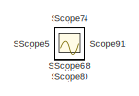
[diagram: root canvas - part 1/2, top left region]
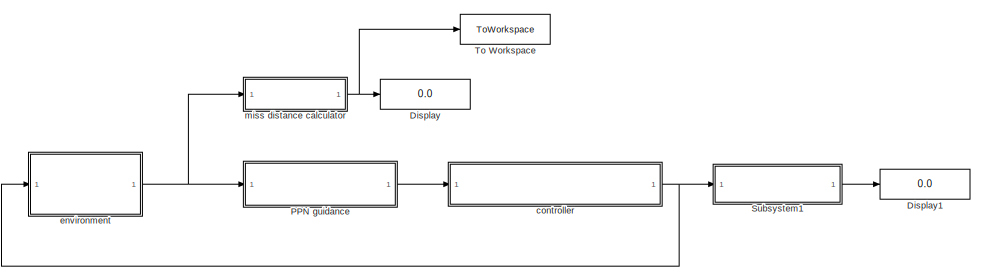
[diagram: root canvas - part 2/2, bottom right region]
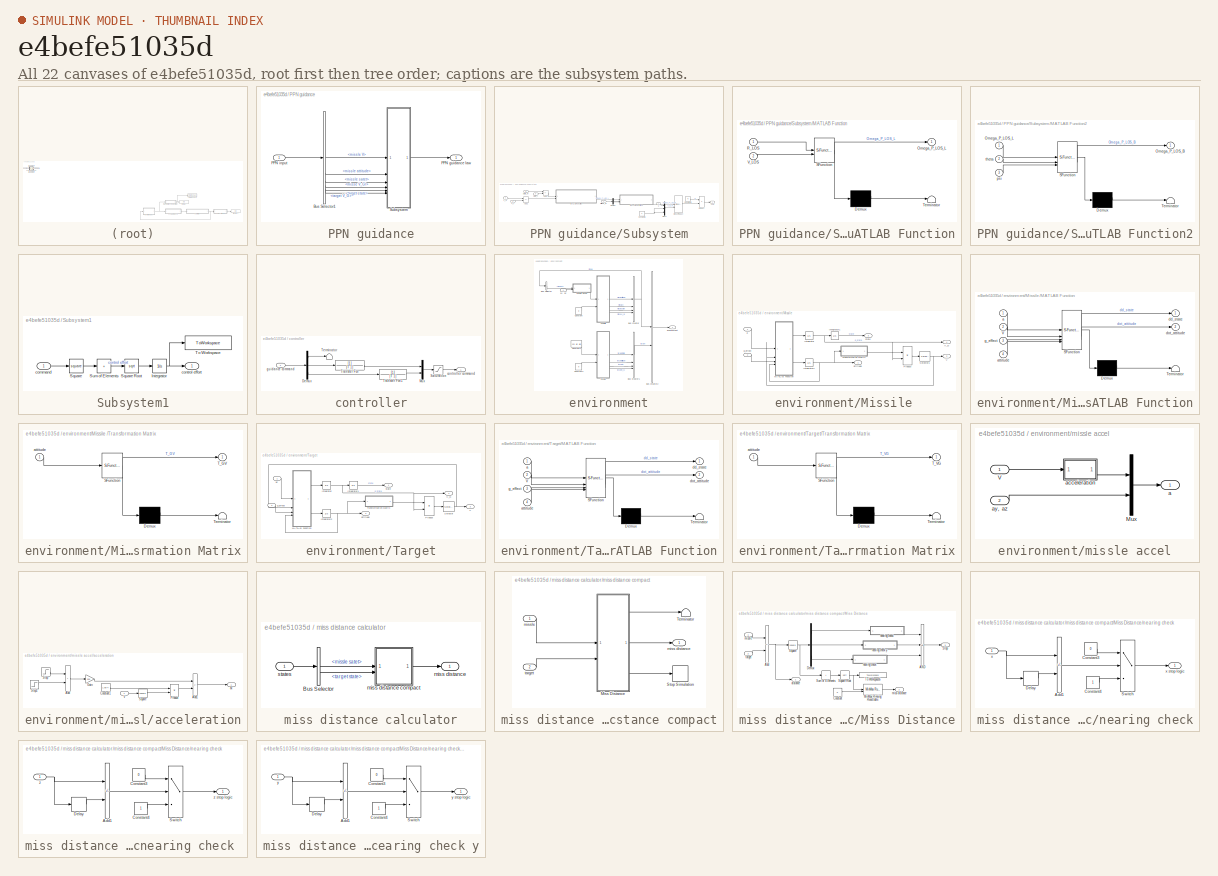
[diagram: thumbnail index - all 22 canvases of the model, root first then tree order]
MODEL slx_e4befe51035d
KIND model
CONFIG AbsTol = auto
CONFIG EnableMultiTasking = off
CONFIG FixedStep = 0.002
CONFIG InitFcn = init;
CONFIG MaxStep = auto
CONFIG MinStep = auto
CONFIG RelTol = 1e-3
CONFIG SampleTimeConstraint = Unconstrained
CONFIG SolverName = ode4
CONFIG StartTime = 0.0
CONFIG StopTime = inf
BLOCK [Display] Display
  Decimation = 1
BLOCK [Display] Display1
  Decimation = 1
BLOCK [SubSystem] PPN guidance
BLOCK [BusSelector] PPN guidance/Bus Selector1
  OutputSignals = missle.missle V,missle.missle attitude,missle.missle satet,missle.misse V_Gl,target.target state,target.target V_G
BLOCK [Outport] PPN guidance/PPN guidance law
BLOCK [Inport] PPN guidance/PPN input
BLOCK [SubSystem] PPN guidance/Subsystem
BLOCK [Sum] PPN guidance/Subsystem/Add1
  IconShape = rectangular
  Inputs = -+
BLOCK [Sum] PPN guidance/Subsystem/Add2
  IconShape = rectangular
  Inputs = -+
BLOCK [Constant] PPN guidance/Subsystem/Constant3
  Value = N
BLOCK [Constant] PPN guidance/Subsystem/Constant6
  Value = 0
BLOCK [Reference] PPN guidance/Subsystem/Cross Product  REF=matrix_library/Cross Product
  LibrarySourceBlock = simulink/Matrix\nOperations/Cross Product
  SourceBlock = matrix_library/Cross Product
  SourceType = CrossProduct
BLOCK [Demux] PPN guidance/Subsystem/Demux
  Outputs = 2
BLOCK [SubSystem] PPN guidance/Subsystem/MATLAB Function
  ErrorFcn = Stateflow.Translate.translate
  LibrarySourceBlock = simulink/User-Defined\nFunctions/MATLAB Function
  PermitHierarchicalResolution = ExplicitOnly
  SFBlockType = MATLAB Function
  TreatAsAtomicUnit = on
BLOCK [Demux] PPN guidance/Subsystem/MATLAB Function/ Demux 
  Outputs = 1
BLOCK [S-Function] PPN guidance/Subsystem/MATLAB Function/ SFunction 
  EnableBusSupport = on
  FunctionName = sf_sfun
  PortCounts = [2 2]
  SFcnIsStateOwnerBlock = off
  SFunctionDeploymentMode = off
  Tag = Stateflow S-Function 5
BLOCK [Terminator] PPN guidance/Subsystem/MATLAB Function/ Terminator 
BLOCK [Outport] PPN guidance/Subsystem/MATLAB Function/Omega_P_LOS_L
BLOCK [Inport] PPN guidance/Subsystem/MATLAB Function/R_LOS
BLOCK [Inport] PPN guidance/Subsystem/MATLAB Function/V_LOS
  Port = 2
BLOCK [SubSystem] PPN guidance/Subsystem/MATLAB Function2
  ErrorFcn = Stateflow.Translate.translate
  PermitHierarchicalResolution = ExplicitOnly
  SFBlockType = MATLAB Function
  TreatAsAtomicUnit = on
BLOCK [Demux] PPN guidance/Subsystem/MATLAB Function2/ Demux 
  Outputs = 1
BLOCK [S-Function] PPN guidance/Subsystem/MATLAB Function2/ SFunction 
  EnableBusSupport = on
  FunctionName = sf_sfun
  PortCounts = [3 2]
  SFcnIsStateOwnerBlock = off
  SFunctionDeploymentMode = off
  Tag = Stateflow S-Function 9
BLOCK [Terminator] PPN guidance/Subsystem/MATLAB Function2/ Terminator 
BLOCK [Outport] PPN guidance/Subsystem/MATLAB Function2/Omega_P_LOS_B
BLOCK [Inport] PPN guidance/Subsystem/MATLAB Function2/Omega_P_LOS_L
BLOCK [Inport] PPN guidance/Subsystem/MATLAB Function2/psi
  Port = 3
BLOCK [Inport] PPN guidance/Subsystem/MATLAB Function2/theta
  Port = 2
BLOCK [Mux] PPN guidance/Subsystem/Mux4
  DisplayOption = bar
  Inputs = 3
BLOCK [Outport] PPN guidance/Subsystem/PPN
BLOCK [Product] PPN guidance/Subsystem/Product
BLOCK [Inport] PPN guidance/Subsystem/V
BLOCK [Inport] PPN guidance/Subsystem/attitude_m
  Port = 2
BLOCK [Inport] PPN guidance/Subsystem/state_m
  Port = 3
BLOCK [Inport] PPN guidance/Subsystem/state_t
  Port = 5
BLOCK [Inport] PPN guidance/Subsystem/v_m
  Port = 4
BLOCK [Inport] PPN guidance/Subsystem/v_t
  Port = 6
BLOCK [Scope] Scope
  Floating = off
  IOType = viewer
  NumInputPorts = 1
  ScopeSpecificationString = Simulink.scopes.TimeScopeBlockCfg('CurrentConfiguration', extmgr.ConfigurationSet(extmgr.Configuration('Core','General UI',true),extmgr.Configuration('Core','Source UI',true),extmgr.Configuration('Sources','WiredSimulink',true,'DataLoggingVariableName','ScopeData1'),extmgr.Configuration('Visuals','Time Domain',true,'SerializedDisplays',{struct('MinYLimReal','-9095.33525','MaxYLimReal','1858.01721'...<+1452ch>
BLOCK [Scope] Scope1
  Floating = off
  IOType = viewer
  NumInputPorts = 1
  ScopeSpecificationString = Simulink.scopes.TimeScopeBlockCfg('CurrentConfiguration', extmgr.ConfigurationSet(extmgr.Configuration('Core','General UI',true),extmgr.Configuration('Core','Source UI',true),extmgr.Configuration('Sources','WiredSimulink',true,'DataLoggingVariableName','ScopeData1'),extmgr.Configuration('Visuals','Time Domain',true,'SerializedDisplays',{struct('MinYLimReal','-72.81517','MaxYLimReal','655.33657','Y...<+1392ch>
BLOCK [Scope] Scope10
  Floating = off
  IOType = viewer
  NumInputPorts = 1
  ScopeSpecificationString = Simulink.scopes.TimeScopeBlockCfg('CurrentConfiguration', extmgr.ConfigurationSet(extmgr.Configuration('Core','General UI',true),extmgr.Configuration('Core','Source UI',true),extmgr.Configuration('Sources','WiredSimulink',true,'DataLoggingVariableName','ScopeData10'),extmgr.Configuration('Visuals','Time Domain',true,'SerializedDisplays',{struct('MinYLimReal','-0.3927','MaxYLimReal','3.53429','YLab...<+1358ch>
BLOCK [Scope] Scope11
  Floating = off
  IOType = viewer
  NumInputPorts = 1
  ScopeSpecificationString = Simulink.scopes.TimeScopeBlockCfg('CurrentConfiguration', extmgr.ConfigurationSet(extmgr.Configuration('Core','General UI',true),extmgr.Configuration('Core','Source UI',true),extmgr.Configuration('Sources','WiredSimulink',true,'DataLoggingVariableName','ScopeData11'),extmgr.Configuration('Visuals','Time Domain',true,'SerializedDisplays',{struct('MinYLimReal','200.00000','MaxYLimReal','400.00000','...<+1374ch>
BLOCK [Scope] Scope12
  Floating = off
  IOType = viewer
  NumInputPorts = 1
  ScopeSpecificationString = Simulink.scopes.TimeScopeBlockCfg('CurrentConfiguration', extmgr.ConfigurationSet(extmgr.Configuration('Core','General UI',true),extmgr.Configuration('Core','Source UI',true),extmgr.Configuration('Sources','WiredSimulink',true,'DataLoggingVariableName','ScopeData1'),extmgr.Configuration('Visuals','Time Domain',true,'SerializedDisplays',{struct('MinYLimReal','-604.06326','MaxYLimReal','5436.56932',...<+1402ch>
BLOCK [Scope] Scope13
  Floating = off
  IOType = viewer
  NumInputPorts = 1
  ScopeSpecificationString = Simulink.scopes.TimeScopeBlockCfg('CurrentConfiguration', extmgr.ConfigurationSet(extmgr.Configuration('Core','General UI',true),extmgr.Configuration('Core','Source UI',true),extmgr.Configuration('Sources','WiredSimulink',true,'DataLoggingVariableName','ScopeData1'),extmgr.Configuration('Visuals','Time Domain',true,'SerializedDisplays',{struct('MinYLimReal','-72.57557','MaxYLimReal','653.1801','YL...<+1390ch>
BLOCK [Scope] Scope14
  Floating = off
  IOType = viewer
  NumInputPorts = 1
  ScopeSpecificationString = Simulink.scopes.TimeScopeBlockCfg('CurrentConfiguration', extmgr.ConfigurationSet(extmgr.Configuration('Core','General UI',true),extmgr.Configuration('Core','Source UI',true),extmgr.Configuration('Sources','WiredSimulink',true,'DataLoggingVariableName','ScopeData2'),extmgr.Configuration('Visuals','Time Domain',true,'SerializedDisplays',{struct('MinYLimReal','-0.0000000000000000175','MaxYLimReal','...<+1498ch>
BLOCK [Scope] Scope15
  Floating = off
  IOType = viewer
  NumInputPorts = 1
  ScopeSpecificationString = Simulink.scopes.TimeScopeBlockCfg('CurrentConfiguration', extmgr.ConfigurationSet(extmgr.Configuration('Core','General UI',true),extmgr.Configuration('Core','Source UI',true),extmgr.Configuration('Sources','WiredSimulink',true,'DataLoggingVariableName','ScopeData2'),extmgr.Configuration('Visuals','Time Domain',true,'SerializedDisplays',{struct('MinYLimReal','-0.02332','MaxYLimReal','-0.02251','YLa...<+1386ch>
BLOCK [Scope] Scope16
  Floating = off
  IOType = viewer
  NumInputPorts = 1
  ScopeSpecificationString = Simulink.scopes.TimeScopeBlockCfg('CurrentConfiguration', extmgr.ConfigurationSet(extmgr.Configuration('Core','General UI',true),extmgr.Configuration('Core','Source UI',true),extmgr.Configuration('Sources','WiredSimulink',true,'DataLoggingVariableName','ScopeData4'),extmgr.Configuration('Visuals','Time Domain',true,'SerializedDisplays',{struct('MinYLimReal','-6.13125','MaxYLimReal','55.18125','YLa...<+1388ch>
BLOCK [Scope] Scope17
  Floating = off
  IOType = viewer
  NumInputPorts = 1
  ScopeSpecificationString = Simulink.scopes.TimeScopeBlockCfg('CurrentConfiguration', extmgr.ConfigurationSet(extmgr.Configuration('Core','General UI',true),extmgr.Configuration('Core','Source UI',true),extmgr.Configuration('Sources','WiredSimulink',true,'DataLoggingVariableName','ScopeData5'),extmgr.Configuration('Visuals','Time Domain',true,'SerializedDisplays',{struct('MinYLimReal','5491.82041','MaxYLimReal','8883.13523',...<+1406ch>
BLOCK [Scope] Scope18
  Floating = off
  IOType = viewer
  NumInputPorts = 1
  ScopeSpecificationString = Simulink.scopes.TimeScopeBlockCfg('CurrentConfiguration', extmgr.ConfigurationSet(extmgr.Configuration('Core','General UI',true),extmgr.Configuration('Core','Source UI',true),extmgr.Configuration('Sources','WiredSimulink',true,'DataLoggingVariableName','ScopeData6'),extmgr.Configuration('Visuals','Time Domain',true,'SerializedDisplays',{struct('MinYLimReal','-0.000000000000000009','MaxYLimReal','0...<+1488ch>
BLOCK [Scope] Scope2
  Floating = off
  IOType = viewer
  NumInputPorts = 1
  ScopeSpecificationString = Simulink.scopes.TimeScopeBlockCfg('CurrentConfiguration', extmgr.ConfigurationSet(extmgr.Configuration('Core','General UI',true),extmgr.Configuration('Core','Source UI',true),extmgr.Configuration('Sources','WiredSimulink',true,'DataLoggingVariableName','ScopeData1'),extmgr.Configuration('Visuals','Time Domain',true,'SerializedDisplays',{struct('MinYLimReal','-6.13125','MaxYLimReal','55.18125','YLa...<+1388ch>
BLOCK [Scope] Scope20
  Floating = off
  IOType = viewer
  NumInputPorts = 1
  ScopeSpecificationString = Simulink.scopes.TimeScopeBlockCfg('CurrentConfiguration', extmgr.ConfigurationSet(extmgr.Configuration('Core','General UI',true),extmgr.Configuration('Core','Source UI',true),extmgr.Configuration('Sources','WiredSimulink',true,'DataLoggingVariableName','ScopeData8'),extmgr.Configuration('Visuals','Time Domain',true,'SerializedDisplays',{struct('MinYLimReal','-4.47062','MaxYLimReal','40.36014','YLa...<+1388ch>
BLOCK [Scope] Scope21
  Floating = off
  IOType = viewer
  NumInputPorts = 1
  ScopeSpecificationString = Simulink.scopes.TimeScopeBlockCfg('CurrentConfiguration', extmgr.ConfigurationSet(extmgr.Configuration('Core','General UI',true),extmgr.Configuration('Core','Source UI',true),extmgr.Configuration('Sources','WiredSimulink',true,'DataLoggingVariableName','ScopeData9'),extmgr.Configuration('Visuals','Time Domain',true,'SerializedDisplays',{struct('MinYLimReal','-994.25187','MaxYLimReal','4096.81321',...<+1402ch>
BLOCK [Scope] Scope22
  Floating = off
  IOType = viewer
  NumInputPorts = 1
  ScopeSpecificationString = Simulink.scopes.TimeScopeBlockCfg('CurrentConfiguration', extmgr.ConfigurationSet(extmgr.Configuration('Core','General UI',true),extmgr.Configuration('Core','Source UI',true),extmgr.Configuration('Sources','WiredSimulink',true,'DataLoggingVariableName','ScopeData10'),extmgr.Configuration('Visuals','Time Domain',true,'SerializedDisplays',{struct('MinYLimReal','-0.00000000000000001','MaxYLimReal','0...<+1500ch>
BLOCK [Scope] Scope23
  Floating = off
  IOType = viewer
  NumInputPorts = 1
  ScopeSpecificationString = Simulink.scopes.TimeScopeBlockCfg('CurrentConfiguration', extmgr.ConfigurationSet(extmgr.Configuration('Core','General UI',true),extmgr.Configuration('Core','Source UI',true),extmgr.Configuration('Sources','WiredSimulink',true,'DataLoggingVariableName','ScopeData11'),extmgr.Configuration('Visuals','Time Domain',true,'SerializedDisplays',{struct('MinYLimReal','-0.000000000000000001','MaxYLimReal','...<+1489ch>
BLOCK [Scope] Scope24
  Floating = off
  IOType = viewer
  NumInputPorts = 1
  ScopeSpecificationString = Simulink.scopes.TimeScopeBlockCfg('CurrentConfiguration', extmgr.ConfigurationSet(extmgr.Configuration('Core','General UI',true),extmgr.Configuration('Core','Source UI',true),extmgr.Configuration('Sources','WiredSimulink',true,'DataLoggingVariableName','ScopeData1'),extmgr.Configuration('Visuals','Time Domain',true,'SerializedDisplays',{struct('MinYLimReal','-107115.79279','MaxYLimReal','961235.50...<+1422ch>
BLOCK [Scope] Scope3
  Floating = off
  IOType = viewer
  NumInputPorts = 1
  ScopeSpecificationString = Simulink.scopes.TimeScopeBlockCfg('CurrentConfiguration', extmgr.ConfigurationSet(extmgr.Configuration('Core','General UI',true),extmgr.Configuration('Core','Source UI',true),extmgr.Configuration('Sources','WiredSimulink',true,'DataLoggingVariableName','ScopeData1'),extmgr.Configuration('Visuals','Time Domain',true,'SerializedDisplays',{struct('MinYLimReal','-337.5','MaxYLimReal','37.5','YLabelRea...<+1347ch>
BLOCK [Scope] Scope4
  Floating = off
  IOType = viewer
  NumInputPorts = 1
  ScopeSpecificationString = Simulink.scopes.TimeScopeBlockCfg('CurrentConfiguration', extmgr.ConfigurationSet(extmgr.Configuration('Core','General UI',true),extmgr.Configuration('Core','Source UI',true),extmgr.Configuration('Sources','WiredSimulink',true,'DataLoggingVariableName','ScopeData2'),extmgr.Configuration('Visuals','Time Domain',true,'SerializedDisplays',{struct('MinYLimReal','-337.5','MaxYLimReal','37.5','YLabelRea...<+1347ch>
BLOCK [Scope] Scope5
  Floating = off
  IOType = viewer
  NumInputPorts = 1
  ScopeSpecificationString = Simulink.scopes.TimeScopeBlockCfg('CurrentConfiguration', extmgr.ConfigurationSet(extmgr.Configuration('Core','General UI',true),extmgr.Configuration('Core','Source UI',true),extmgr.Configuration('Sources','WiredSimulink',true,'DataLoggingVariableName','ScopeData3'),extmgr.Configuration('Visuals','Time Domain',true,'SerializedDisplays',{struct('MinYLimReal','-1.00000','MaxYLimReal','1.00000','YLab...<+1359ch>
BLOCK [Scope] Scope6
  Floating = off
  IOType = viewer
  NumInputPorts = 1
  ScopeSpecificationString = Simulink.scopes.TimeScopeBlockCfg('CurrentConfiguration', extmgr.ConfigurationSet(extmgr.Configuration('Core','General UI',true),extmgr.Configuration('Core','Source UI',true),extmgr.Configuration('Sources','WiredSimulink',true,'DataLoggingVariableName','ScopeData6'),extmgr.Configuration('Visuals','Time Domain',true,'SerializedDisplays',{struct('MinYLimReal','-614.44146','MaxYLimReal','5529.9731','...<+1399ch>
BLOCK [Scope] Scope7
  Floating = off
  IOType = viewer
  NumInputPorts = 1
  ScopeSpecificationString = Simulink.scopes.TimeScopeBlockCfg('CurrentConfiguration', extmgr.ConfigurationSet(extmgr.Configuration('Core','General UI',true),extmgr.Configuration('Core','Source UI',true),extmgr.Configuration('Sources','WiredSimulink',true,'DataLoggingVariableName','ScopeData7'),extmgr.Configuration('Visuals','Time Domain',true,'SerializedDisplays',{struct('MinYLimReal','-0.11496','MaxYLimReal','1.03464','YLab...<+1359ch>
BLOCK [Scope] Scope8
  Floating = off
  IOType = viewer
  NumInputPorts = 1
  ScopeSpecificationString = Simulink.scopes.TimeScopeBlockCfg('CurrentConfiguration', extmgr.ConfigurationSet(extmgr.Configuration('Core','General UI',true),extmgr.Configuration('Core','Source UI',true),extmgr.Configuration('Sources','WiredSimulink',true,'DataLoggingVariableName','ScopeData8'),extmgr.Configuration('Visuals','Time Domain',true,'SerializedDisplays',{struct('MinYLimReal','412.19771','MaxYLimReal','425.81202','Y...<+1373ch>
BLOCK [Scope] Scope9
  Floating = off
  IOType = viewer
  NumInputPorts = 1
  ScopeSpecificationString = Simulink.scopes.TimeScopeBlockCfg('CurrentConfiguration', extmgr.ConfigurationSet(extmgr.Configuration('Core','General UI',true),extmgr.Configuration('Core','Source UI',true),extmgr.Configuration('Sources','WiredSimulink',true,'DataLoggingVariableName','ScopeData9'),extmgr.Configuration('Visuals','Time Domain',true,'SerializedDisplays',{struct('MinYLimReal','-625.00000','MaxYLimReal','5625.00000',...<+1406ch>
BLOCK [SubSystem] Subsystem1
BLOCK [Integrator] Subsystem1/Integrator
BLOCK [Math] Subsystem1/Square
  Operator = square
BLOCK [Sqrt] Subsystem1/Square Root
BLOCK [Sum] Subsystem1/Sum of Elements
  IconShape = rectangular
  Inputs = +
BLOCK [ToWorkspace] Subsystem1/To Workspace
  FixptAsFi = on
  MaxDataPoints = inf
  SampleTime = -1
  SaveFormat = Timeseries
  VariableName = control_effort
BLOCK [Inport] Subsystem1/command
BLOCK [Outport] Subsystem1/control effort
BLOCK [ToWorkspace] To Workspace
  FixptAsFi = on
  MaxDataPoints = inf
  SampleTime = -1
  SaveFormat = Timeseries
  VariableName = miss_distance
BLOCK [SubSystem] controller
BLOCK [Demux] controller/Demux
  Outputs = 3
BLOCK [Mux] controller/Mux
  DisplayOption = bar
  Inputs = 2
BLOCK [Saturate] controller/Saturation
  LowerLimit = -saturation_lim*g
  UpperLimit = saturation_lim*g
BLOCK [Terminator] controller/Terminator
BLOCK [TransferFcn] controller/Transfer Fcn
  Denominator = [T 1]
BLOCK [TransferFcn] controller/Transfer Fcn1
  Denominator = [T 1]
BLOCK [Outport] controller/controller command
BLOCK [Inport] controller/guidance command
BLOCK [SubSystem] environment
BLOCK [BusCreator] environment/Bus Creator
  DisplayOption = bar
  InheritFromInputs = on
  Inputs = 4
BLOCK [BusCreator] environment/Bus Creator1
  DisplayOption = bar
  InheritFromInputs = on
  Inputs = 4
BLOCK [BusCreator] environment/Bus Creator2
  DisplayOption = bar
  InheritFromInputs = on
  Inputs = 2
BLOCK [BusSelector] environment/Bus Selector
  OutputSignals = missle V
BLOCK [Constant] environment/Constant
  Value = 0
BLOCK [Constant] environment/Constant1
  Value = [0; g; g]
BLOCK [Constant] environment/Constant2
  Value = 0
BLOCK [SubSystem] environment/Missile 
BLOCK [Integrator] environment/Missile /Integrator
  InitialCondition = d_state_m
BLOCK [Integrator] environment/Missile /Integrator1
  InitialCondition = state_m0
BLOCK [Integrator] environment/Missile /Integrator2
  InitialCondition = attitude_m0
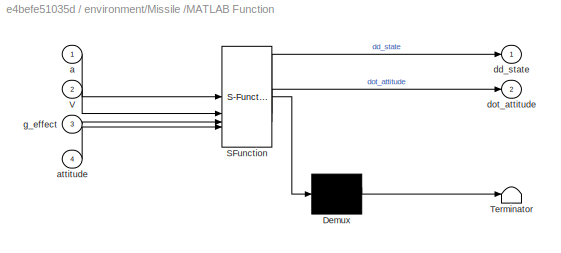
BLOCK [SubSystem] environment/Missile /MATLAB Function
  ErrorFcn = Stateflow.Translate.translate
  LibrarySourceBlock = simulink/User-Defined\nFunctions/MATLAB Function
  PermitHierarchicalResolution = ExplicitOnly
  SFBlockType = MATLAB Function
  TreatAsAtomicUnit = on
BLOCK [Demux] environment/Missile /MATLAB Function/ Demux 
  Outputs = 1
BLOCK [S-Function] environment/Missile /MATLAB Function/ SFunction 
  EnableBusSupport = on
  FunctionName = sf_sfun
  PortCounts = [4 3]
  SFcnIsStateOwnerBlock = off
  SFunctionDeploymentMode = off
  Tag = Stateflow S-Function 2
BLOCK [Terminator] environment/Missile /MATLAB Function/ Terminator 
BLOCK [Inport] environment/Missile /MATLAB Function/V
  Port = 2
BLOCK [Inport] environment/Missile /MATLAB Function/a
BLOCK [Inport] environment/Missile /MATLAB Function/attitude
  Port = 4
BLOCK [Outport] environment/Missile /MATLAB Function/dd_state
BLOCK [Outport] environment/Missile /MATLAB Function/dot_attitude
  Port = 2
BLOCK [Inport] environment/Missile /MATLAB Function/g_effect
  Port = 3
BLOCK [Product] environment/Missile /Product
  Multiplication = Matrix(*)
BLOCK [Selector] environment/Missile /Selector1
  IndexOptions = Index vector (dialog)
  Indices = [1]
  InputPortWidth = 3
  OutputSizes = 1
BLOCK [SubSystem] environment/Missile /Transformation Matrix
  ErrorFcn = Stateflow.Translate.translate
  LibrarySourceBlock = simulink/User-Defined\nFunctions/MATLAB Function
  PermitHierarchicalResolution = ExplicitOnly
  SFBlockType = MATLAB Function
  TreatAsAtomicUnit = on
BLOCK [Demux] environment/Missile /Transformation Matrix/ Demux 
  Outputs = 1
BLOCK [S-Function] environment/Missile /Transformation Matrix/ SFunction 
  EnableBusSupport = on
  FunctionName = sf_sfun
  PortCounts = [1 2]
  SFcnIsStateOwnerBlock = off
  SFunctionDeploymentMode = off
  Tag = Stateflow S-Function 1
BLOCK [Terminator] environment/Missile /Transformation Matrix/ Terminator 
BLOCK [Outport] environment/Missile /Transformation Matrix/T_GV
BLOCK [Inport] environment/Missile /Transformation Matrix/attitude
BLOCK [Outport] environment/Missile /V
  Port = 2
BLOCK [Outport] environment/Missile /V_G
  Port = 4
BLOCK [Inport] environment/Missile /a
BLOCK [Outport] environment/Missile /attitude
BLOCK [Inport] environment/Missile /g_effect
  Port = 2
BLOCK [Outport] environment/Missile /state
  Port = 3
BLOCK [SubSystem] environment/Target
BLOCK [Integrator] environment/Target/Integrator
  InitialCondition = d_state_t
BLOCK [Integrator] environment/Target/Integrator1
  InitialCondition = state_t0
BLOCK [Integrator] environment/Target/Integrator2
  InitialCondition = attitude_t0
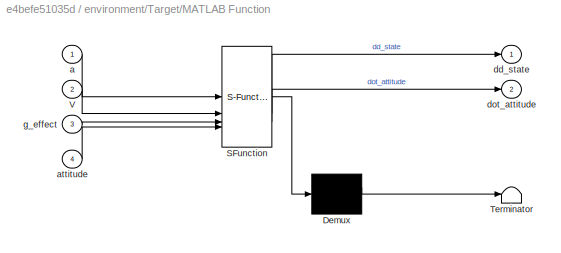
BLOCK [SubSystem] environment/Target/MATLAB Function
  ErrorFcn = Stateflow.Translate.translate
  LibrarySourceBlock = simulink/User-Defined\nFunctions/MATLAB Function
  PermitHierarchicalResolution = ExplicitOnly
  SFBlockType = MATLAB Function
  TreatAsAtomicUnit = on
BLOCK [Demux] environment/Target/MATLAB Function/ Demux 
  Outputs = 1
BLOCK [S-Function] environment/Target/MATLAB Function/ SFunction 
  EnableBusSupport = on
  FunctionName = sf_sfun
  PortCounts = [4 3]
  SFcnIsStateOwnerBlock = off
  SFunctionDeploymentMode = off
  Tag = Stateflow S-Function 3
BLOCK [Terminator] environment/Target/MATLAB Function/ Terminator 
BLOCK [Inport] environment/Target/MATLAB Function/V
  Port = 2
BLOCK [Inport] environment/Target/MATLAB Function/a
BLOCK [Inport] environment/Target/MATLAB Function/attitude
  Port = 4
BLOCK [Outport] environment/Target/MATLAB Function/dd_state
BLOCK [Outport] environment/Target/MATLAB Function/dot_attitude
  Port = 2
BLOCK [Inport] environment/Target/MATLAB Function/g_effect
  Port = 3
BLOCK [Product] environment/Target/Product
  Multiplication = Matrix(*)
BLOCK [Selector] environment/Target/Selector
  IndexOptions = Index vector (dialog)
  Indices = [1]
  InputPortWidth = 3
  NameLocation = left
  OutputSizes = 1
BLOCK [SubSystem] environment/Target/Transformation Matrix
  ErrorFcn = Stateflow.Translate.translate
  LibrarySourceBlock = simulink/User-Defined\nFunctions/MATLAB Function
  PermitHierarchicalResolution = ExplicitOnly
  SFBlockType = MATLAB Function
  TreatAsAtomicUnit = on
BLOCK [Demux] environment/Target/Transformation Matrix/ Demux 
  Outputs = 1
BLOCK [S-Function] environment/Target/Transformation Matrix/ SFunction 
  EnableBusSupport = on
  FunctionName = sf_sfun
  PortCounts = [1 2]
  SFcnIsStateOwnerBlock = off
  SFunctionDeploymentMode = off
  Tag = Stateflow S-Function 4
BLOCK [Terminator] environment/Target/Transformation Matrix/ Terminator 
BLOCK [Outport] environment/Target/Transformation Matrix/T_VG
BLOCK [Inport] environment/Target/Transformation Matrix/attitude
BLOCK [Outport] environment/Target/V
  Port = 3
BLOCK [Outport] environment/Target/V_G
  Port = 4
BLOCK [Inport] environment/Target/ac
BLOCK [Outport] environment/Target/attitude
  Port = 2
BLOCK [Inport] environment/Target/g_effect
  Port = 2
BLOCK [Outport] environment/Target/state
BLOCK [Inport] environment/ay, az
BLOCK [Outport] environment/environment
BLOCK [SubSystem] environment/missle accel
BLOCK [Mux] environment/missle accel/Mux
  DisplayOption = bar
  Inputs = 2
BLOCK [Inport] environment/missle accel/V
BLOCK [Outport] environment/missle accel/a
BLOCK [SubSystem] environment/missle accel/acceleration
BLOCK [Sum] environment/missle accel/acceleration/Add
  IconShape = rectangular
BLOCK [Sum] environment/missle accel/acceleration/Add1
  IconShape = rectangular
  Inputs = +-
BLOCK [Constant] environment/missle accel/acceleration/Constant1
  Value = 1.5e-4
BLOCK [Gain] environment/missle accel/acceleration/Gain
  Gain = 300
BLOCK [Product] environment/missle accel/acceleration/Product
BLOCK [Math] environment/missle accel/acceleration/Square
  Operator = square
BLOCK [Step] environment/missle accel/acceleration/Step
  After = -1
  SampleTime = 0
  Time = 3
BLOCK [Step] environment/missle accel/acceleration/Step1
  SampleTime = 0
  Time = 0
BLOCK [Inport] environment/missle accel/acceleration/V
BLOCK [Outport] environment/missle accel/acceleration/ax
BLOCK [Inport] environment/missle accel/ay, az
  Port = 2
BLOCK [SubSystem] miss distance calculator
BLOCK [BusSelector] miss distance calculator/Bus Selector
  OutputSignals = missle.missle satet,target.target state
BLOCK [Outport] miss distance calculator/miss distance
BLOCK [SubSystem] miss distance calculator/miss distance compact
BLOCK [SubSystem] miss distance calculator/miss distance compact/Miss Distance
BLOCK [Logic] miss distance calculator/miss distance compact/Miss Distance/AND
  AllPortsSameDT = off
  IconShape = distinctive
  Inputs = 3
  OutDataTypeStr = boolean
BLOCK [Sum] miss distance calculator/miss distance compact/Miss Distance/Add
  IconShape = rectangular
  Inputs = +-
BLOCK [Constant] miss distance calculator/miss distance compact/Miss Distance/Constant
  Value = 0
BLOCK [Demux] miss distance calculator/miss distance compact/Miss Distance/Demux
  Outputs = 3
BLOCK [Reference] miss distance calculator/miss distance compact/Miss Distance/MinMax Running Resettable  REF=simulink/Math
Operations/MinMax
Running
Resettable
  SourceBlock = simulink/Math\nOperations/MinMax\nRunning\nResettable
  SourceType = MinMax Running Resettable
BLOCK [Math] miss distance calculator/miss distance compact/Miss Distance/Square
  Operator = square
BLOCK [Sqrt] miss distance calculator/miss distance compact/Miss Distance/Square Root
BLOCK [Outport] miss distance calculator/miss distance compact/Miss Distance/Stop
  Port = 3
BLOCK [Sum] miss distance calculator/miss distance compact/Miss Distance/Sum of Elements
  IconShape = rectangular
  Inputs = +
BLOCK [ToWorkspace] miss distance calculator/miss distance compact/Miss Distance/To Workspace6
  FixptAsFi = on
  MaxDataPoints = inf
  SampleTime = -1
  Save2DSignal = 2-D array (concatenate along first dimension)
  SaveFormat = Timeseries
  VariableName = distance
BLOCK [Outport] miss distance calculator/miss distance compact/Miss Distance/distance
BLOCK [Outport] miss distance calculator/miss distance compact/Miss Distance/miss distance
  Port = 2
BLOCK [Inport] miss distance calculator/miss distance compact/Miss Distance/missle
BLOCK [SubSystem] miss distance calculator/miss distance compact/Miss Distance/nearing check
BLOCK [SubSystem] miss distance calculator/miss distance compact/Miss Distance/nearing check 
BLOCK [Sum] miss distance calculator/miss distance compact/Miss Distance/nearing check /Add1
  IconShape = rectangular
  Inputs = -+
BLOCK [Constant] miss distance calculator/miss distance compact/Miss Distance/nearing check /Constant3
  Value = 0
BLOCK [Constant] miss distance calculator/miss distance compact/Miss Distance/nearing check /Constant4
BLOCK [Delay] miss distance calculator/miss distance compact/Miss Distance/nearing check /Delay
  DelayLength = 1
  InitialCondition = inf
  InputPortMap = u0
BLOCK [Switch] miss distance calculator/miss distance compact/Miss Distance/nearing check /Switch
  Criteria = u2 > Threshold
  InputSameDT = off
  SaturateOnIntegerOverflow = off
BLOCK [Inport] miss distance calculator/miss distance compact/Miss Distance/nearing check /z
BLOCK [Outport] miss distance calculator/miss distance compact/Miss Distance/nearing check /z stop logic
BLOCK [SubSystem] miss distance calculator/miss distance compact/Miss Distance/nearing check y
BLOCK [Sum] miss distance calculator/miss distance compact/Miss Distance/nearing check y/Add1
  IconShape = rectangular
  Inputs = -+
BLOCK [Constant] miss distance calculator/miss distance compact/Miss Distance/nearing check y/Constant3
  Value = 0
BLOCK [Constant] miss distance calculator/miss distance compact/Miss Distance/nearing check y/Constant4
BLOCK [Delay] miss distance calculator/miss distance compact/Miss Distance/nearing check y/Delay
  DelayLength = 1
  InitialCondition = inf
  InputPortMap = u0
BLOCK [Switch] miss distance calculator/miss distance compact/Miss Distance/nearing check y/Switch
  Criteria = u2 > Threshold
  InputSameDT = off
  SaturateOnIntegerOverflow = off
BLOCK [Inport] miss distance calculator/miss distance compact/Miss Distance/nearing check y/y
BLOCK [Outport] miss distance calculator/miss distance compact/Miss Distance/nearing check y/y stop logic
BLOCK [Sum] miss distance calculator/miss distance compact/Miss Distance/nearing check/Add1
  IconShape = rectangular
  Inputs = -+
BLOCK [Constant] miss distance calculator/miss distance compact/Miss Distance/nearing check/Constant3
  Value = 0
BLOCK [Constant] miss distance calculator/miss distance compact/Miss Distance/nearing check/Constant4
BLOCK [Delay] miss distance calculator/miss distance compact/Miss Distance/nearing check/Delay
  DelayLength = 1
  InitialCondition = inf
  InputPortMap = u0
BLOCK [Switch] miss distance calculator/miss distance compact/Miss Distance/nearing check/Switch
  Criteria = u2 > Threshold
  InputSameDT = off
  SaturateOnIntegerOverflow = off
BLOCK [Inport] miss distance calculator/miss distance compact/Miss Distance/nearing check/x
BLOCK [Outport] miss distance calculator/miss distance compact/Miss Distance/nearing check/x stop logic
BLOCK [Inport] miss distance calculator/miss distance compact/Miss Distance/target
  Port = 2
BLOCK [Stop] miss distance calculator/miss distance compact/Stop Simulation
BLOCK [Terminator] miss distance calculator/miss distance compact/Terminator
BLOCK [Outport] miss distance calculator/miss distance compact/miss distance
BLOCK [Inport] miss distance calculator/miss distance compact/missle
BLOCK [Inport] miss distance calculator/miss distance compact/target
  Port = 2
BLOCK [Inport] miss distance calculator/states
LINE PPN guidance/Bus Selector1:1 -> PPN guidance/Subsystem:1
LINE PPN guidance/Bus Selector1:2 -> PPN guidance/Subsystem:2
LINE PPN guidance/Bus Selector1:3 -> PPN guidance/Subsystem:3
LINE PPN guidance/Bus Selector1:4 -> PPN guidance/Subsystem:4
LINE PPN guidance/Bus Selector1:5 -> PPN guidance/Subsystem:5
LINE PPN guidance/Bus Selector1:6 -> PPN guidance/Subsystem:6
LINE PPN guidance/PPN input:1 -> PPN guidance/Bus Selector1:1
LINE PPN guidance/Subsystem/Add1:1 -> PPN guidance/Subsystem/MATLAB Function:1
LINE PPN guidance/Subsystem/Add2:1 -> PPN guidance/Subsystem/MATLAB Function:2
LINE PPN guidance/Subsystem/Constant3:1 -> PPN guidance/Subsystem/Product:1
NET PPN guidance/Subsystem/Constant6:1 -> PPN guidance/Subsystem/Mux4:2, PPN guidance/Subsystem/Mux4:3
LINE PPN guidance/Subsystem/Cross Product:1 -> PPN guidance/Subsystem/Product:2
LINE PPN guidance/Subsystem/Demux:1 -> PPN guidance/Subsystem/MATLAB Function2:2
LINE PPN guidance/Subsystem/Demux:2 -> PPN guidance/Subsystem/MATLAB Function2:3
LINE PPN guidance/Subsystem/MATLAB Function2:1 -> PPN guidance/Subsystem/Cross Product:1
LINE PPN guidance/Subsystem/MATLAB Function:1 -> PPN guidance/Subsystem/MATLAB Function2:1
LINE PPN guidance/Subsystem/Mux4:1 -> PPN guidance/Subsystem/Cross Product:2
LINE PPN guidance/Subsystem/Product:1 -> PPN guidance/Subsystem/PPN:1
LINE PPN guidance/Subsystem/V:1 -> PPN guidance/Subsystem/Mux4:1
LINE PPN guidance/Subsystem/attitude_m:1 -> PPN guidance/Subsystem/Demux:1
LINE PPN guidance/Subsystem/state_m:1 -> PPN guidance/Subsystem/Add1:1
LINE PPN guidance/Subsystem/state_t:1 -> PPN guidance/Subsystem/Add1:2
LINE PPN guidance/Subsystem/v_m:1 -> PPN guidance/Subsystem/Add2:1
LINE PPN guidance/Subsystem/v_t:1 -> PPN guidance/Subsystem/Add2:2
LINE PPN guidance/Subsystem:1 -> PPN guidance/PPN guidance law:1
LINE PPN guidance:1 -> controller:1
NET Subsystem1/Integrator:1 -> Subsystem1/To Workspace:1, Subsystem1/control effort:1
LINE Subsystem1/Square Root:1 -> Subsystem1/Integrator:1
LINE Subsystem1/Square:1 -> Subsystem1/Sum of Elements:1
LINE Subsystem1/Sum of Elements:1 -> Subsystem1/Square Root:1
LINE Subsystem1/command:1 -> Subsystem1/Square:1
LINE Subsystem1:1 -> Display1:1
LINE controller/Demux:1 -> controller/Terminator:1
LINE controller/Demux:2 -> controller/Transfer Fcn:1
LINE controller/Demux:3 -> controller/Transfer Fcn1:1
LINE controller/Mux:1 -> controller/Saturation:1
LINE controller/Saturation:1 -> controller/controller command:1
LINE controller/Transfer Fcn1:1 -> controller/Mux:2
LINE controller/Transfer Fcn:1 -> controller/Mux:1
LINE controller/guidance command:1 -> controller/Demux:1
NET controller:1 -> Subsystem1:1, environment:1
LINE environment/Bus Creator1:1 -> environment/Bus Creator2:2
LINE environment/Bus Creator2:1 -> environment/environment:1
NET environment/Bus Creator:1 -> environment/Bus Creator2:1, environment/Bus Selector:1
LINE environment/Bus Selector:1 -> environment/missle accel:1
LINE environment/Constant1:1 -> environment/Target:1
LINE environment/Constant2:1 -> environment/Target:2
LINE environment/Constant:1 -> environment/Missile :2
LINE environment/Missile /Integrator1:1 -> environment/Missile /state:1
NET environment/Missile /Integrator2:1 -> environment/Missile /MATLAB Function:4, environment/Missile /Transformation Matrix:1, environment/Missile /attitude:1
NET environment/Missile /Integrator:1 -> environment/Missile /Integrator1:1, environment/Missile /Product:2, environment/Missile /V_G:1
LINE environment/Missile /MATLAB Function:1 -> environment/Missile /Integrator:1
LINE environment/Missile /MATLAB Function:2 -> environment/Missile /Integrator2:1
LINE environment/Missile /Product:1 -> environment/Missile /Selector1:1
NET environment/Missile /Selector1:1 -> environment/Missile /MATLAB Function:2, environment/Missile /V:1
LINE environment/Missile /Transformation Matrix:1 -> environment/Missile /Product:1
LINE environment/Missile /a:1 -> environment/Missile /MATLAB Function:1
LINE environment/Missile /g_effect:1 -> environment/Missile /MATLAB Function:3
LINE environment/Missile :1 -> environment/Bus Creator:1
LINE environment/Missile :2 -> environment/Bus Creator:2
LINE environment/Missile :3 -> environment/Bus Creator:3
LINE environment/Missile :4 -> environment/Bus Creator:4
LINE environment/Target/Integrator1:1 -> environment/Target/state:1
NET environment/Target/Integrator2:1 -> environment/Target/MATLAB Function:4, environment/Target/Transformation Matrix:1, environment/Target/attitude:1
NET environment/Target/Integrator:1 -> environment/Target/Integrator1:1, environment/Target/Product:2, environment/Target/V_G:1
LINE environment/Target/MATLAB Function:1 -> environment/Target/Integrator:1
LINE environment/Target/MATLAB Function:2 -> environment/Target/Integrator2:1
LINE environment/Target/Product:1 -> environment/Target/Selector:1
NET environment/Target/Selector:1 -> environment/Target/MATLAB Function:2, environment/Target/V:1
LINE environment/Target/Transformation Matrix:1 -> environment/Target/Product:1
LINE environment/Target/ac:1 -> environment/Target/MATLAB Function:1
LINE environment/Target/g_effect:1 -> environment/Target/MATLAB Function:3
LINE environment/Target:1 -> environment/Bus Creator1:1
LINE environment/Target:2 -> environment/Bus Creator1:2
LINE environment/Target:3 -> environment/Bus Creator1:3
LINE environment/Target:4 -> environment/Bus Creator1:4
LINE environment/ay, az:1 -> environment/missle accel:2
LINE environment/missle accel/Mux:1 -> environment/missle accel/a:1
LINE environment/missle accel/V:1 -> environment/missle accel/acceleration:1
LINE environment/missle accel/acceleration/Add1:1 -> environment/missle accel/acceleration/ax:1
LINE environment/missle accel/acceleration/Add:1 -> environment/missle accel/acceleration/Gain:1
LINE environment/missle accel/acceleration/Constant1:1 -> environment/missle accel/acceleration/Product:1
LINE environment/missle accel/acceleration/Gain:1 -> environment/missle accel/acceleration/Add1:1
LINE environment/missle accel/acceleration/Product:1 -> environment/missle accel/acceleration/Add1:2
LINE environment/missle accel/acceleration/Square:1 -> environment/missle accel/acceleration/Product:2
LINE environment/missle accel/acceleration/Step1:1 -> environment/missle accel/acceleration/Add:2
LINE environment/missle accel/acceleration/Step:1 -> environment/missle accel/acceleration/Add:1
LINE environment/missle accel/acceleration/V:1 -> environment/missle accel/acceleration/Square:1
LINE environment/missle accel/acceleration:1 -> environment/missle accel/Mux:1
LINE environment/missle accel/ay, az:1 -> environment/missle accel/Mux:2
LINE environment/missle accel:1 -> environment/Missile :1
NET environment:1 -> PPN guidance:1, miss distance calculator:1
LINE miss distance calculator/Bus Selector:1 -> miss distance calculator/miss distance compact:1
LINE miss distance calculator/Bus Selector:2 -> miss distance calculator/miss distance compact:2
LINE miss distance calculator/miss distance compact/Miss Distance/AND:1 -> miss distance calculator/miss distance compact/Miss Distance/Stop:1
NET miss distance calculator/miss distance compact/Miss Distance/Add:1 -> miss distance calculator/miss distance compact/Miss Distance/Square:1, miss distance calculator/miss distance compact/Miss Distance/distance:1
LINE miss distance calculator/miss distance compact/Miss Distance/Constant:1 -> miss distance calculator/miss distance compact/Miss Distance/MinMax Running Resettable:2
LINE miss distance calculator/miss distance compact/Miss Distance/Demux:1 -> miss distance calculator/miss distance compact/Miss Distance/nearing check:1
LINE miss distance calculator/miss distance compact/Miss Distance/Demux:2 -> miss distance calculator/miss distance compact/Miss Distance/nearing check y:1
LINE miss distance calculator/miss distance compact/Miss Distance/Demux:3 -> miss distance calculator/miss distance compact/Miss Distance/nearing check :1
LINE miss distance calculator/miss distance compact/Miss Distance/MinMax Running Resettable:1 -> miss distance calculator/miss distance compact/Miss Distance/miss distance:1
NET miss distance calculator/miss distance compact/Miss Distance/Square Root:1 -> miss distance calculator/miss distance compact/Miss Distance/MinMax Running Resettable:1, miss distance calculator/miss distance compact/Miss Distance/To Workspace6:1
NET miss distance calculator/miss distance compact/Miss Distance/Square:1 -> miss distance calculator/miss distance compact/Miss Distance/Demux:1, miss distance calculator/miss distance compact/Miss Distance/Sum of Elements:1
LINE miss distance calculator/miss distance compact/Miss Distance/Sum of Elements:1 -> miss distance calculator/miss distance compact/Miss Distance/Square Root:1
LINE miss distance calculator/miss distance compact/Miss Distance/missle:1 -> miss distance calculator/miss distance compact/Miss Distance/Add:1
LINE miss distance calculator/miss distance compact/Miss Distance/nearing check /Add1:1 -> miss distance calculator/miss distance compact/Miss Distance/nearing check /Switch:2
LINE miss distance calculator/miss distance compact/Miss Distance/nearing check /Constant3:1 -> miss distance calculator/miss distance compact/Miss Distance/nearing check /Switch:1
LINE miss distance calculator/miss distance compact/Miss Distance/nearing check /Constant4:1 -> miss distance calculator/miss distance compact/Miss Distance/nearing check /Switch:3
LINE miss distance calculator/miss distance compact/Miss Distance/nearing check /Delay:1 -> miss distance calculator/miss distance compact/Miss Distance/nearing check /Add1:2
LINE miss distance calculator/miss distance compact/Miss Distance/nearing check /Switch:1 -> miss distance calculator/miss distance compact/Miss Distance/nearing check /z stop logic:1
NET miss distance calculator/miss distance compact/Miss Distance/nearing check /z:1 -> miss distance calculator/miss distance compact/Miss Distance/nearing check /Add1:1, miss distance calculator/miss distance compact/Miss Distance/nearing check /Delay:1
LINE miss distance calculator/miss distance compact/Miss Distance/nearing check :1 -> miss distance calculator/miss distance compact/Miss Distance/AND:3
LINE miss distance calculator/miss distance compact/Miss Distance/nearing check y/Add1:1 -> miss distance calculator/miss distance compact/Miss Distance/nearing check y/Switch:2
LINE miss distance calculator/miss distance compact/Miss Distance/nearing check y/Constant3:1 -> miss distance calculator/miss distance compact/Miss Distance/nearing check y/Switch:1
LINE miss distance calculator/miss distance compact/Miss Distance/nearing check y/Constant4:1 -> miss distance calculator/miss distance compact/Miss Distance/nearing check y/Switch:3
LINE miss distance calculator/miss distance compact/Miss Distance/nearing check y/Delay:1 -> miss distance calculator/miss distance compact/Miss Distance/nearing check y/Add1:2
LINE miss distance calculator/miss distance compact/Miss Distance/nearing check y/Switch:1 -> miss distance calculator/miss distance compact/Miss Distance/nearing check y/y stop logic:1
NET miss distance calculator/miss distance compact/Miss Distance/nearing check y/y:1 -> miss distance calculator/miss distance compact/Miss Distance/nearing check y/Add1:1, miss distance calculator/miss distance compact/Miss Distance/nearing check y/Delay:1
LINE miss distance calculator/miss distance compact/Miss Distance/nearing check y:1 -> miss distance calculator/miss distance compact/Miss Distance/AND:2
LINE miss distance calculator/miss distance compact/Miss Distance/nearing check/Add1:1 -> miss distance calculator/miss distance compact/Miss Distance/nearing check/Switch:2
LINE miss distance calculator/miss distance compact/Miss Distance/nearing check/Constant3:1 -> miss distance calculator/miss distance compact/Miss Distance/nearing check/Switch:1
LINE miss distance calculator/miss distance compact/Miss Distance/nearing check/Constant4:1 -> miss distance calculator/miss distance compact/Miss Distance/nearing check/Switch:3
LINE miss distance calculator/miss distance compact/Miss Distance/nearing check/Delay:1 -> miss distance calculator/miss distance compact/Miss Distance/nearing check/Add1:2
LINE miss distance calculator/miss distance compact/Miss Distance/nearing check/Switch:1 -> miss distance calculator/miss distance compact/Miss Distance/nearing check/x stop logic:1
NET miss distance calculator/miss distance compact/Miss Distance/nearing check/x:1 -> miss distance calculator/miss distance compact/Miss Distance/nearing check/Add1:1, miss distance calculator/miss distance compact/Miss Distance/nearing check/Delay:1
LINE miss distance calculator/miss distance compact/Miss Distance/nearing check:1 -> miss distance calculator/miss distance compact/Miss Distance/AND:1
LINE miss distance calculator/miss distance compact/Miss Distance/target:1 -> miss distance calculator/miss distance compact/Miss Distance/Add:2
LINE miss distance calculator/miss distance compact/Miss Distance:1 -> miss distance calculator/miss distance compact/Terminator:1
LINE miss distance calculator/miss distance compact/Miss Distance:2 -> miss distance calculator/miss distance compact/miss distance:1
LINE miss distance calculator/miss distance compact/Miss Distance:3 -> miss distance calculator/miss distance compact/Stop Simulation:1
LINE miss distance calculator/miss distance compact/missle:1 -> miss distance calculator/miss distance compact/Miss Distance:1
LINE miss distance calculator/miss distance compact/target:1 -> miss distance calculator/miss distance compact/Miss Distance:2
LINE miss distance calculator/miss distance compact:1 -> miss distance calculator/miss distance:1
LINE miss distance calculator/states:1 -> miss distance calculator/Bus Selector:1
NET miss distance calculator:1 -> Display:1, To Workspace:1
note: NET lines group one-source signal fan-out (src -> all destinations, sorted); 1:1 wires keep LINE
CHART environment/Missile /Transformation Matrix states=1 transitions=1
  STATE_LABEL 'eML_blk_kernel()'
  STATE_LABEL 'SCRIPT:\nfunction T_GV = fcn(attitude)\ntheta = attitude(1);\npsi = attitude(2);\n\nT_GV = [cos(theta)*cos(psi)   cos(theta)*sin(psi)   sin(theta)\n            -sin(psi)               cos(psi)            0\n        -sin(theta)*cos(psi)  -sin(theta)*sin(psi)   cos(theta) ];\n'
CHART environment/Missile /MATLAB Function states=1 transitions=1
  STATE_LABEL 'eML_blk_kernel()'
  STATE_LABEL 'SCRIPT:\nfunction [dd_state, dot_attitude] =...\n    fcn(a, V, g_effect, attitude)\na_x = a(1);\na_y = a(2);\na_z = a(3);\n\ntheta = attitude(1);\npsi = attitude(2);\ng = 0;\ng = g*g_effect;\n\nddot_x = a_x*cos(theta)*cos(psi) - a_y*sin(psi) - a_z*sin(theta)*cos(psi);\nddot_y = a_x*cos(theta)*sin(psi) + a_y*cos(psi) - a_z*sin(theta)*sin(psi);\nddot_z = a_x*sin(theta) + a_z*cos(theta) - g;\n\ndd_state = [ddot_x; d...<+128ch>'
CHART environment/Target/MATLAB Function states=1 transitions=1
  STATE_LABEL 'eML_blk_kernel()'
  STATE_LABEL 'SCRIPT:\nfunction [dd_state, dot_attitude] =...\n    fcn(a, V, g_effect, attitude)\na_x = a(1);\na_y = a(2);\na_z = a(3);\n\ntheta = attitude(1);\npsi = attitude(2);\ng = 0;\ng = g*g_effect;\n\nddot_x = a_x*cos(theta)*cos(psi) - a_y*sin(psi) - a_z*sin(theta)*cos(psi);\nddot_y = a_x*cos(theta)*sin(psi) + a_y*cos(psi) - a_z*sin(theta)*sin(psi);\nddot_z = a_x*sin(theta) + a_z*cos(theta) - g;\n\ndd_state = [ddot_x; d...<+126ch>'
CHART environment/Target/Transformation Matrix states=1 transitions=1
  STATE_LABEL 'eML_blk_kernel()'
  STATE_LABEL 'SCRIPT:\nfunction T_VG = fcn(attitude)\ntheta = attitude(1);\npsi = attitude(2);\n\nT_VG = [cos(theta)*cos(psi)   cos(theta)*sin(psi)   sin(theta)\n            -sin(psi)               cos(psi)            0\n        -sin(theta)*cos(psi)  -sin(theta)*sin(psi)   cos(theta) ];\n'
CHART PPN guidance/Subsystem/MATLAB Function states=1 transitions=1
  STATE_LABEL 'eML_blk_kernel()'
  STATE_LABEL 'SCRIPT:\nfunction Omega_P_LOS_L = omega_calculator(R_LOS,V_LOS)\n%definning skew symetric matrix of R for cross product\nR_skew_sym = [   0        -R_LOS(3)     R_LOS(2)\n               R_LOS(3)      0         -R_LOS(1)\n              -R_LOS(2)    R_LOS(1)        0     ];\n\n%norm of R\nnorm_R = R_LOS(1)^2 + R_LOS(2)^2 +R_LOS(3)^2;\n\n%Omega Perpendicular LOS in Local Level cordinate system\nOmega_P_LOS_L = ...<+25ch>'
CHART PPN guidance/Subsystem/MATLAB Function2 states=1 transitions=1
  STATE_LABEL 'eML_blk_kernel()'
  STATE_LABEL 'SCRIPT:\nfunction Omega_P_LOS_B = T_B_L(Omega_P_LOS_L,theta,psi)\n\nT_B_L = [cos(theta)*cos(psi)   cos(theta)*sin(psi)   sin(theta)\n            -sin(psi)               cos(psi)            0\n        -sin(theta)*cos(psi)  -sin(theta)*sin(psi)   cos(theta) ];\n\nOmega_P_LOS_B = T_B_L*Omega_P_LOS_L;\nend\n'
CHART  states=0 transitions=0
CHART  states=0 transitions=0
CHART  states=0 transitions=0
CHART  states=0 transitions=0
CHART  states=0 transitions=0
CHART  states=0 transitions=0
